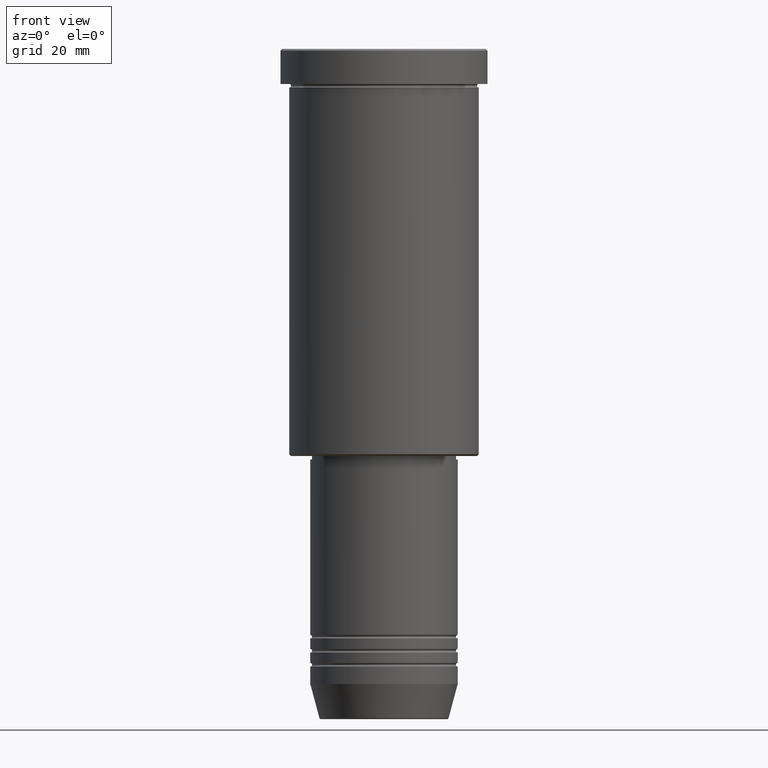
[diagram: clean part render]
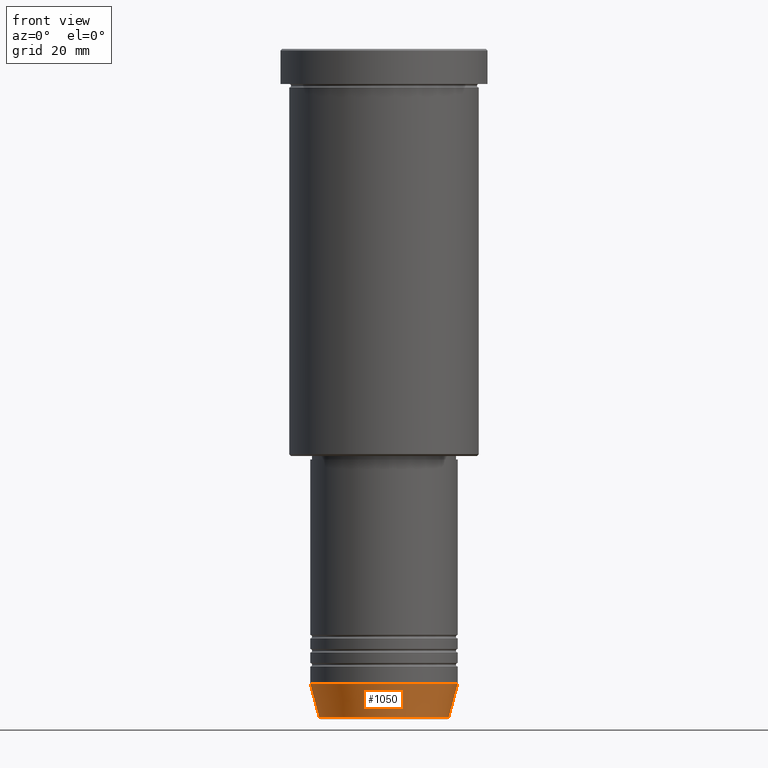
[diagram: same view with one face highlighted and labeled with its STEP entity id]
A machine part, front view. The second image highlights one B-rep face of the part: STEP entity #1050.
In plain terms, the highlighted conical surface has half-angle 15 deg.
Its self-contained STEP definition (entity closure, byte-faithful):
#22 = DIRECTION ( 'NONE',  ( 1.000000000000000000, 0.000000000000000000, 0.000000000000000000 ) ) ;
#25 = LINE ( 'NONE', #397, #940 ) ;
#28 = EDGE_LOOP ( 'NONE', ( #704, #886, #960, #1075 ) ) ;
#203 = CARTESIAN_POINT ( 'NONE',  ( 21.00000000000000000, 0.000000000000000000, -181.0000000000000000 ) ) ;
#267 = DIRECTION ( 'NONE',  ( -0.000000000000000000, -0.000000000000000000, 1.000000000000000000 ) ) ;
#287 = LINE ( 'NONE', #203, #718 ) ;
#290 = CARTESIAN_POINT ( 'NONE',  ( -18.41980749484383040, 2.413767053578267064E-15, -190.6294095225512706 ) ) ;
#293 = DIRECTION ( 'NONE',  ( -0.000000000000000000, -0.000000000000000000, 1.000000000000000000 ) ) ;
#296 = AXIS2_PLACEMENT_3D ( 'NONE', #1005, #267, #637 ) ;
#326 = VERTEX_POINT ( 'NONE', #614 ) ;
#353 = VERTEX_POINT ( 'NONE', #889 ) ;
#397 = CARTESIAN_POINT ( 'NONE',  ( -21.00000000000000000, 2.571758278209441661E-15, -181.0000000000000000 ) ) ;
#417 = EDGE_CURVE ( 'NONE', #903, #326, #996, .T. ) ;
#439 = EDGE_CURVE ( 'NONE', #326, #802, #287, .T. ) ;
#477 = AXIS2_PLACEMENT_3D ( 'NONE', #734, #293, #22 ) ;
#492 = EDGE_CURVE ( 'NONE', #903, #353, #25, .T. ) ;
#552 = DIRECTION ( 'NONE',  ( 1.000000000000000000, 0.000000000000000000, 0.000000000000000000 ) ) ;
#556 = FACE_OUTER_BOUND ( 'NONE', #28, .T. ) ;
#614 = CARTESIAN_POINT ( 'NONE',  ( 18.41980749484383040, 0.000000000000000000, -190.6294095225512706 ) ) ;
#637 = DIRECTION ( 'NONE',  ( 1.000000000000000000, 0.000000000000000000, 0.000000000000000000 ) ) ;
#647 = CARTESIAN_POINT ( 'NONE',  ( 21.00000000000000000, 0.000000000000000000, -181.0000000000000000 ) ) ;
#704 = ORIENTED_EDGE ( 'NONE', *, *, #492, .F. ) ;
#718 = VECTOR ( 'NONE', #1030, 1000.000000000000114 ) ;
#734 = CARTESIAN_POINT ( 'NONE',  ( 0.000000000000000000, 0.000000000000000000, -190.6294095225512706 ) ) ;
#737 = CIRCLE ( 'NONE', #1100, 21.00000000000000000 ) ;
#751 = DIRECTION ( 'NONE',  ( -0.2588190451025211836, 3.169619151431770488E-17, 0.9659258262890680902 ) ) ;
#802 = VERTEX_POINT ( 'NONE', #647 ) ;
#813 = CONICAL_SURFACE ( 'NONE', #296, 21.00000000000000000, 0.2617993877991499074 ) ;
#886 = ORIENTED_EDGE ( 'NONE', *, *, #417, .T. ) ;
#889 = CARTESIAN_POINT ( 'NONE',  ( -21.00000000000000000, 2.571758278209441661E-15, -181.0000000000000000 ) ) ;
#903 = VERTEX_POINT ( 'NONE', #290 ) ;
#930 = DIRECTION ( 'NONE',  ( -0.000000000000000000, -0.000000000000000000, 1.000000000000000000 ) ) ;
#940 = VECTOR ( 'NONE', #751, 1000.000000000000114 ) ;
#960 = ORIENTED_EDGE ( 'NONE', *, *, #439, .T. ) ;
#996 = CIRCLE ( 'NONE', #477, 18.41980749484383040 ) ;
#1005 = CARTESIAN_POINT ( 'NONE',  ( 0.000000000000000000, 0.000000000000000000, -181.0000000000000000 ) ) ;
#1023 = CARTESIAN_POINT ( 'NONE',  ( 0.000000000000000000, 0.000000000000000000, -181.0000000000000000 ) ) ;
#1030 = DIRECTION ( 'NONE',  ( 0.2588190451025211836, 0.000000000000000000, 0.9659258262890680902 ) ) ;
#1050 = ADVANCED_FACE ( 'NONE', ( #556 ), #813, .T. ) ;
#1075 = ORIENTED_EDGE ( 'NONE', *, *, #1084, .F. ) ;
#1084 = EDGE_CURVE ( 'NONE', #353, #802, #737, .T. ) ;
#1100 = AXIS2_PLACEMENT_3D ( 'NONE', #1023, #930, #552 ) ;